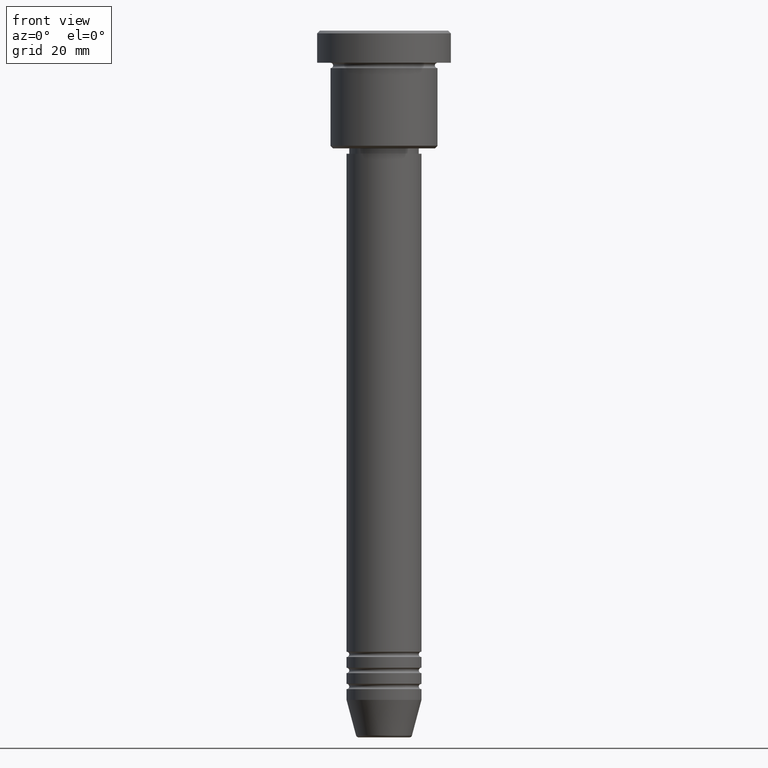
[diagram: clean part render]
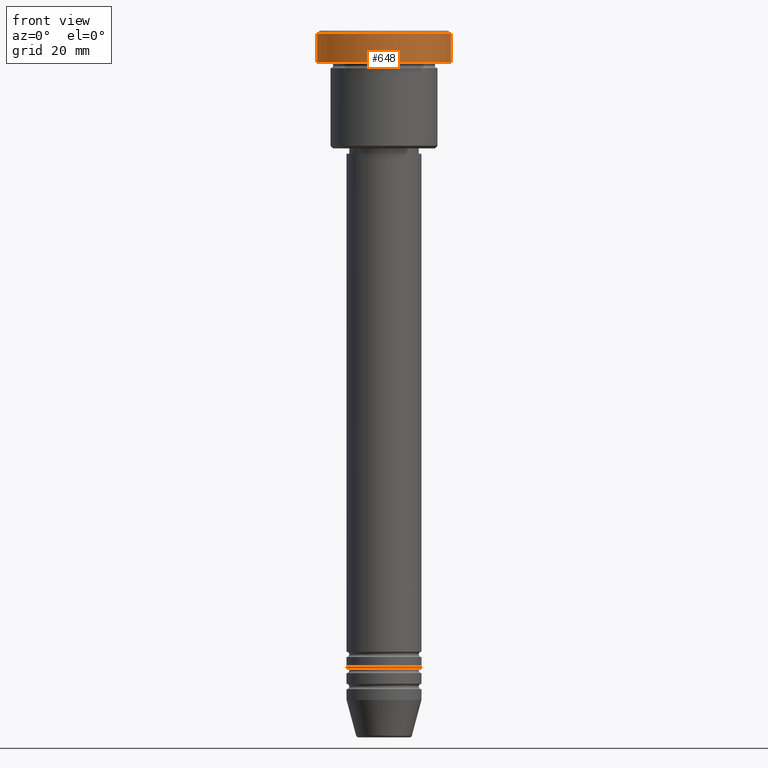
[diagram: same view with one face highlighted and labeled with its STEP entity id]
A machine part, front view. The second image highlights one B-rep face of the part: STEP entity #648.
In plain terms, the highlighted cylindrical surface (partial cylindrical patch) has radius 12.5 mm, axis along (-0, -0, 1).
Its self-contained STEP definition (entity closure, byte-faithful):
#1 = VERTEX_POINT ( 'NONE', #1027 ) ;
#14 = AXIS2_PLACEMENT_3D ( 'NONE', #412, #505, #73 ) ;
#63 = EDGE_CURVE ( 'NONE', #821, #1, #516, .T. ) ;
#73 = DIRECTION ( 'NONE',  ( 1.000000000000000000, 0.000000000000000000, 0.000000000000000000 ) ) ;
#83 = ORIENTED_EDGE ( 'NONE', *, *, #262, .T. ) ;
#127 = CARTESIAN_POINT ( 'NONE',  ( 12.50000000000000000, 0.000000000000000000, 0.000000000000000000 ) ) ;
#131 = CARTESIAN_POINT ( 'NONE',  ( -12.50000000000000000, 1.530808498934191521E-15, 0.000000000000000000 ) ) ;
#221 = LINE ( 'NONE', #127, #520 ) ;
#229 = LINE ( 'NONE', #131, #563 ) ;
#262 = EDGE_CURVE ( 'NONE', #837, #489, #333, .T. ) ;
#309 = CARTESIAN_POINT ( 'NONE',  ( -12.50000000000000000, 1.530808498934191521E-15, -0.4999999999999640288 ) ) ;
#333 = CIRCLE ( 'NONE', #836, 12.50000000000000000 ) ;
#383 = CYLINDRICAL_SURFACE ( 'NONE', #799, 12.50000000000000000 ) ;
#412 = CARTESIAN_POINT ( 'NONE',  ( 0.000000000000000000, 0.000000000000000000, -5.999999999999996447 ) ) ;
#415 = CARTESIAN_POINT ( 'NONE',  ( 0.000000000000000000, 0.000000000000000000, -0.4999999999999640288 ) ) ;
#418 = CARTESIAN_POINT ( 'NONE',  ( 12.50000000000000000, 0.000000000000000000, -0.4999999999999640288 ) ) ;
#472 = DIRECTION ( 'NONE',  ( -0.000000000000000000, -0.000000000000000000, 1.000000000000000000 ) ) ;
#480 = DIRECTION ( 'NONE',  ( -0.000000000000000000, -0.000000000000000000, 1.000000000000000000 ) ) ;
#489 = VERTEX_POINT ( 'NONE', #309 ) ;
#505 = DIRECTION ( 'NONE',  ( -0.000000000000000000, -0.000000000000000000, 1.000000000000000000 ) ) ;
#516 = CIRCLE ( 'NONE', #14, 12.50000000000000000 ) ;
#520 = VECTOR ( 'NONE', #480, 1000.000000000000000 ) ;
#543 = EDGE_CURVE ( 'NONE', #1, #837, #221, .T. ) ;
#563 = VECTOR ( 'NONE', #699, 1000.000000000000000 ) ;
#592 = EDGE_LOOP ( 'NONE', ( #814, #1158, #797, #83 ) ) ;
#648 = ADVANCED_FACE ( 'NONE', ( #651 ), #383, .T. ) ;
#651 = FACE_OUTER_BOUND ( 'NONE', #592, .T. ) ;
#699 = DIRECTION ( 'NONE',  ( -0.000000000000000000, -0.000000000000000000, 1.000000000000000000 ) ) ;
#751 = CARTESIAN_POINT ( 'NONE',  ( 0.000000000000000000, 0.000000000000000000, 0.000000000000000000 ) ) ;
#766 = CARTESIAN_POINT ( 'NONE',  ( -12.50000000000000000, 1.530808498934191521E-15, -5.999999999999996447 ) ) ;
#797 = ORIENTED_EDGE ( 'NONE', *, *, #543, .T. ) ;
#799 = AXIS2_PLACEMENT_3D ( 'NONE', #751, #472, #849 ) ;
#814 = ORIENTED_EDGE ( 'NONE', *, *, #947, .F. ) ;
#821 = VERTEX_POINT ( 'NONE', #766 ) ;
#836 = AXIS2_PLACEMENT_3D ( 'NONE', #415, #1149, #1059 ) ;
#837 = VERTEX_POINT ( 'NONE', #418 ) ;
#849 = DIRECTION ( 'NONE',  ( 1.000000000000000000, 0.000000000000000000, 0.000000000000000000 ) ) ;
#947 = EDGE_CURVE ( 'NONE', #821, #489, #229, .T. ) ;
#1027 = CARTESIAN_POINT ( 'NONE',  ( 12.50000000000000000, 0.000000000000000000, -5.999999999999996447 ) ) ;
#1059 = DIRECTION ( 'NONE',  ( 1.000000000000000000, 0.000000000000000000, 0.000000000000000000 ) ) ;
#1149 = DIRECTION ( 'NONE',  ( 0.000000000000000000, 0.000000000000000000, -1.000000000000000000 ) ) ;
#1158 = ORIENTED_EDGE ( 'NONE', *, *, #63, .T. ) ;